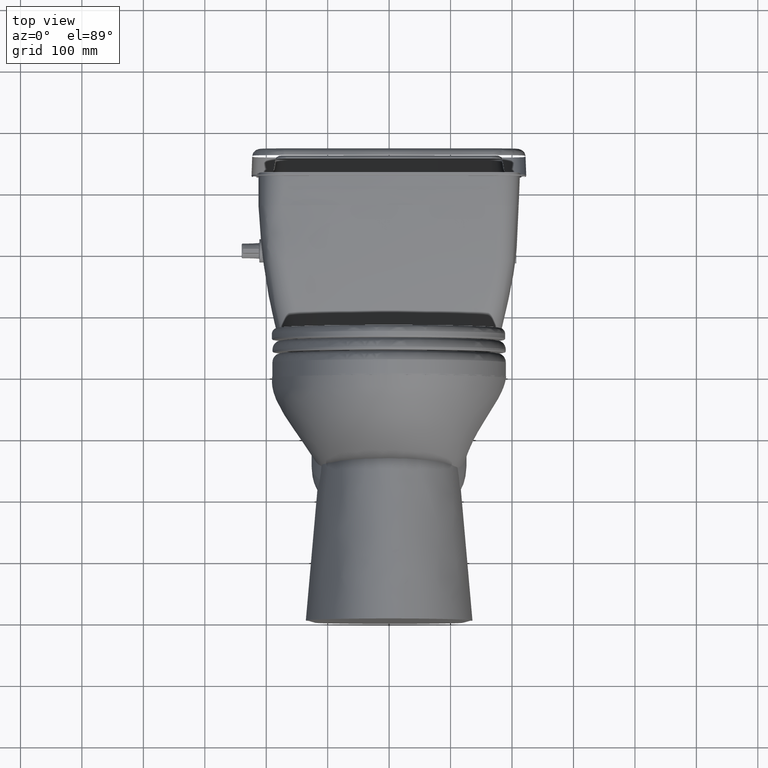
[diagram: clean part render]
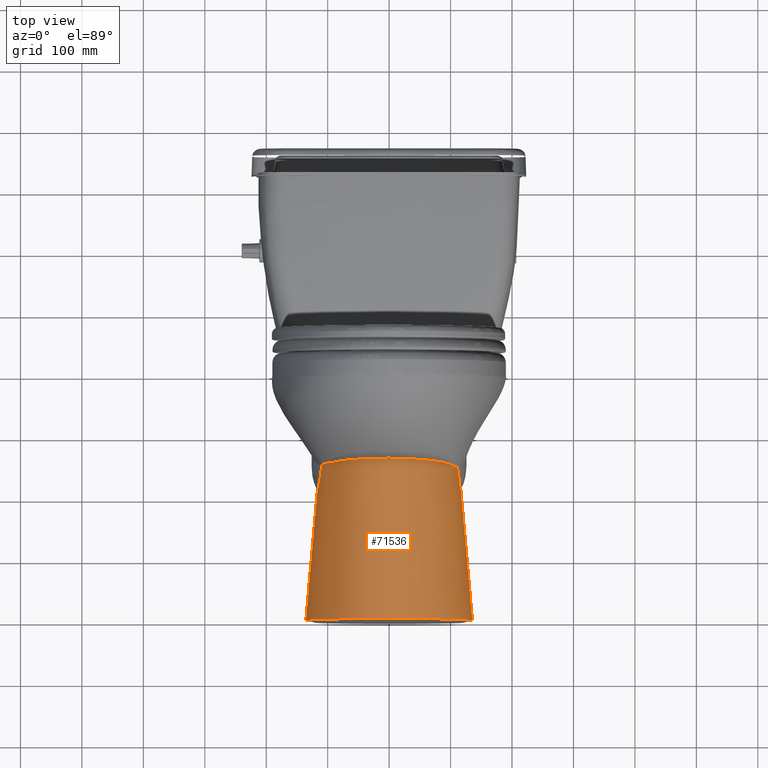
[diagram: same view with one face highlighted and labeled with its STEP entity id]
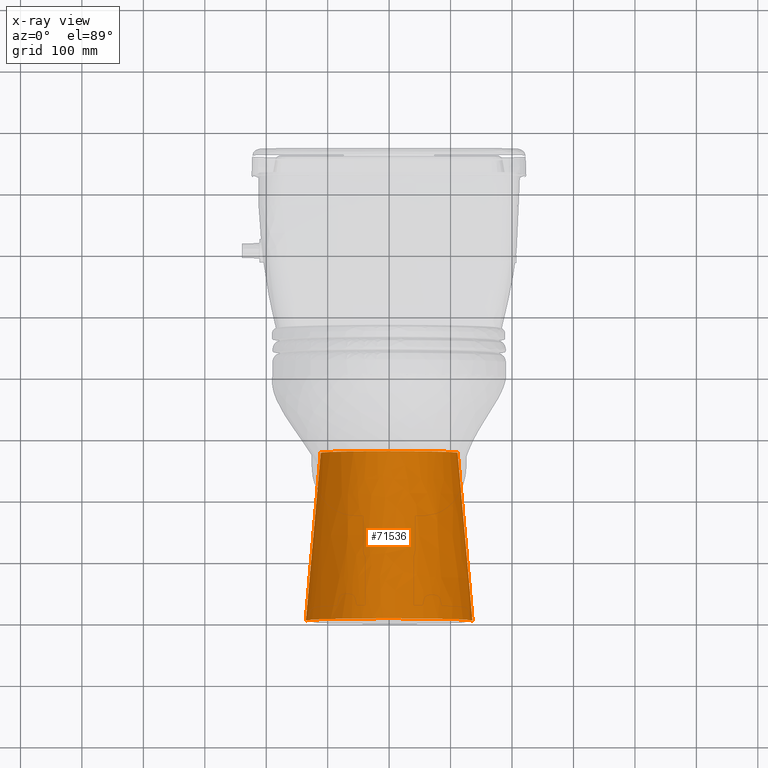
[diagram: x-ray of the same camera — body ghosted, the highlighted face saturated]
A machine part, top view. The second image highlights one B-rep face of the part: STEP entity #71536.
The next image is the same camera in x-ray: the body ghosted, the highlighted face saturated — about 0% of this face is hidden behind the body in this view.
In plain terms, the highlighted face is a freeform B-spline surface patch.
Its self-contained STEP definition (entity closure, byte-faithful):
#3551 = CARTESIAN_POINT ( 'NONE',  ( 5.339194488185818000, -3.168207399435823300, -0.03937007874005237600 ) ) ;
#6254 = CARTESIAN_POINT ( 'NONE',  ( -4.862505812883858500, -1.095489723747637800, 5.334645669291338900 ) ) ;
#10876 = CARTESIAN_POINT ( 'NONE',  ( -3.463895836830676200E-013, -8.144026380842085200, 10.70866141732470400 ) ) ;
#11030 = CARTESIAN_POINT ( 'NONE',  ( -1.745585303599606300E-013, -10.20963318340551300, -0.03937007874007874400 ) ) ;
#11683 = CARTESIAN_POINT ( 'NONE',  ( 2.454219911234094600, -7.103923603740158300, 10.70866141731692900 ) ) ;
#13248 = EDGE_LOOP ( 'NONE', ( #172875, #29583, #194501, #161890 ) ) ;
#14062 = LINE ( 'NONE', #6254, #71350 ) ;
#14891 = CARTESIAN_POINT ( 'NONE',  ( 5.339194488185827800, -1.020987031340944800, -0.03937007874015748000 ) ) ;
#18276 = CARTESIAN_POINT ( 'NONE',  ( -5.339194488185030200, -3.168207399435429400, -0.03937007874005237600 ) ) ;
#18930 = CARTESIAN_POINT ( 'NONE',  ( 4.939984348022038700, -5.315427768472432900, -0.03937007874005237600 ) ) ;
#19591 = CARTESIAN_POINT ( 'NONE',  ( -4.141564152196843400, -7.269991621716522800, -0.03937007874009174800 ) ) ;
#26382 = CARTESIAN_POINT ( 'NONE',  ( -2.454219911234252200, -7.103923603748032000, 10.70866141732874200 ) ) ;
#27673 = CARTESIAN_POINT ( 'NONE',  ( 1.286359738092125900, -7.876339723704724300, 10.70866141732716600 ) ) ;
#29583 = ORIENTED_EDGE ( 'NONE', *, *, #96096, .F. ) ;
#32753 = EDGE_CURVE ( 'NONE', #91366, #84252, #38774, .T. ) ;
#38774 = B_SPLINE_CURVE_WITH_KNOTS ( 'NONE', 12,
 ( #175748, #127690, #143024, #190443, #143693, #85028, #10876, #100343, #55594, #100991, #118273, #163004, #102289 ),
 .UNSPECIFIED., .F., .F.,
 ( 13, 13 ),
 ( 0.0000000000000000000, 0.4221477315721536800 ),
 .UNSPECIFIED. ) ;
#41511 = EDGE_CURVE ( 'NONE', #141685, #102341, #103355, .T. ) ;
#42372 = CARTESIAN_POINT ( 'NONE',  ( -5.339194488185039900, -3.168207399435433400, -0.03937007874015748000 ) ) ;
#43030 = CARTESIAN_POINT ( 'NONE',  ( -5.339194488185039900, -1.020987031340944800, -0.03937007874015748000 ) ) ;
#55594 = CARTESIAN_POINT ( 'NONE',  ( 2.454219911233982200, -7.103923603739792400, 10.70866141731919000 ) ) ;
#57715 = CARTESIAN_POINT ( 'NONE',  ( -3.402038093070472300, -5.912889406011811600, 10.70866141731811000 ) ) ;
#62309 = CARTESIAN_POINT ( 'NONE',  ( 2.987711756281097300, -8.839242523759827100, -0.03937007874001300500 ) ) ;
#69797 = FACE_OUTER_BOUND ( 'NONE', #13248, .T. ) ;
#71126 = CARTESIAN_POINT ( 'NONE',  ( 1.565985221908622100, -9.856932608133858400, -0.03937007874023622200 ) ) ;
#71350 = VECTOR ( 'NONE', #113044, 39.37007874015748100 ) ;
#71536 = ADVANCED_FACE ( 'NONE', ( #69797 ), #113275, .F. ) ;
#73087 = CARTESIAN_POINT ( 'NONE',  ( -4.385817137582677100, -1.169992416154330700, 10.70866141732283500 ) ) ;
#77413 = EDGE_CURVE ( 'NONE', #84252, #141685, #117278, .T. ) ;
#77714 = CARTESIAN_POINT ( 'NONE',  ( -5.339194488185039900, -1.020987031340944800, -0.03937007874015750100 ) ) ;
#84252 = VERTEX_POINT ( 'NONE', #101059 ) ;
#85028 = CARTESIAN_POINT ( 'NONE',  ( -1.286359738092461000, -7.876339723700370500, 10.70866141732076600 ) ) ;
#86506 = CARTESIAN_POINT ( 'NONE',  ( 4.385817137584646200, -1.169992416153937000, 10.70866141732283500 ) ) ;
#87166 = CARTESIAN_POINT ( 'NONE',  ( 5.339194488185827800, -3.168207399435827300, -0.03937007874015748000 ) ) ;
#87791 = CARTESIAN_POINT ( 'NONE',  ( 2.987711756281102200, -8.839242523759843100, -0.03937007874011810800 ) ) ;
#91366 = VERTEX_POINT ( 'NONE', #197323 ) ;
#96096 = EDGE_CURVE ( 'NONE', #102341, #91366, #14062, .T. ) ;
#100343 = CARTESIAN_POINT ( 'NONE',  ( 1.286359738092067100, -7.876339723704306900, 10.70866141732942700 ) ) ;
#100991 = CARTESIAN_POINT ( 'NONE',  ( 3.402038093069804400, -5.912889406019400200, 10.70866141732903300 ) ) ;
#101059 = CARTESIAN_POINT ( 'NONE',  ( 4.385817137584646200, -1.169992416152756000, 10.70866141732283500 ) ) ;
#101160 = CARTESIAN_POINT ( 'NONE',  ( -4.057890766271653700, -4.429405357814960800, 10.70866141732480500 ) ) ;
#102289 = CARTESIAN_POINT ( 'NONE',  ( 4.385817137584646200, -1.169992416152756000, 10.70866141732283500 ) ) ;
#102341 = VERTEX_POINT ( 'NONE', #184614 ) ;
#102455 = CARTESIAN_POINT ( 'NONE',  ( -3.463895836830314700E-013, -8.144026380842520400, 10.70866141732244300 ) ) ;
#103103 = CARTESIAN_POINT ( 'NONE',  ( 4.057890766274015300, -4.429405357811023500, 10.70866141732086700 ) ) ;
#103355 = B_SPLINE_CURVE_WITH_KNOTS ( 'NONE', 12,
 ( #149027, #3551, #18930, #109676, #62309, #125656, #170379, #124983, #138998, #19591, #126303, #18276, #77714 ),
 .UNSPECIFIED., .F., .F.,
 ( 13, 13 ),
 ( 0.0000000000000000000, 0.5409017084930978200 ),
 .UNSPECIFIED. ) ;
#105376 = VECTOR ( 'NONE', #115529, 39.37007874015748100 ) ;
#109676 = CARTESIAN_POINT ( 'NONE',  ( 4.141564152199992900, -7.269991621716522800, -0.03937007874009174800 ) ) ;
#113044 = DIRECTION ( 'NONE',  ( 0.08834716893553855300, -0.01380796795318845300, 0.9959940350032620000 ) ) ;
#113275 = B_SPLINE_SURFACE_WITH_KNOTS ( 'NONE', 12, 1, ( 
 ( #178533, #86506 ),
 ( #87166, #193893 ),
 ( #177225, #103103 ),
 ( #119095, #179848 ),
 ( #87791, #11683 ),
 ( #71126, #27673 ),
 ( #11030, #102455 ),
 ( #117796, #149745 ),
 ( #118432, #26382 ),
 ( #133085, #57715 ),
 ( #133724, #101160 ),
 ( #42372, #148454 ),
 ( #43030, #73087 ) ),
 .UNSPECIFIED., .F., .F., .F.,
 ( 13, 13 ),
 ( 2, 2 ),
 ( 4.712388980384999600, 7.853981633973999600 ),
 ( 0.0000000000000000000, 1.000000000000000000 ),
 .UNSPECIFIED. ) ;
#115529 = DIRECTION ( 'NONE',  ( 0.08834716893543004300, 0.01380796795315211400, -0.9959940350032722200 ) ) ;
#117278 = LINE ( 'NONE', #145518, #105376 ) ;
#117796 = CARTESIAN_POINT ( 'NONE',  ( -1.565985221908267700, -9.856932608133858400, -0.03937007874023622200 ) ) ;
#118273 = CARTESIAN_POINT ( 'NONE',  ( 4.057890766273829700, -4.429405357810837900, 10.70866141732312800 ) ) ;
#118432 = CARTESIAN_POINT ( 'NONE',  ( -2.987711756280708700, -8.839242523763779500, -0.03937007874011810800 ) ) ;
#119095 = CARTESIAN_POINT ( 'NONE',  ( 4.141564152200000000, -7.269991621716536100, -0.03937007874019685800 ) ) ;
#124983 = CARTESIAN_POINT ( 'NONE',  ( -1.565985221908265100, -9.856932608133838900, -0.03937007874013111200 ) ) ;
#125656 = CARTESIAN_POINT ( 'NONE',  ( 1.565985221908619400, -9.856932608133838900, -0.03937007874013111200 ) ) ;
#126303 = CARTESIAN_POINT ( 'NONE',  ( -4.939984348019676100, -5.315427768472432900, -0.03937007874005237600 ) ) ;
#127690 = CARTESIAN_POINT ( 'NONE',  ( -4.385817137582476400, -2.799698944894804400, 10.70866141732431000 ) ) ;
#133085 = CARTESIAN_POINT ( 'NONE',  ( -4.141564152196850500, -7.269991621716536100, -0.03937007874019685800 ) ) ;
#133724 = CARTESIAN_POINT ( 'NONE',  ( -4.939984348019685000, -5.315427768472441800, -0.03937007874015748000 ) ) ;
#138998 = CARTESIAN_POINT ( 'NONE',  ( -2.987711756280703800, -8.839242523763763500, -0.03937007874001300500 ) ) ;
#141685 = VERTEX_POINT ( 'NONE', #14891 ) ;
#143024 = CARTESIAN_POINT ( 'NONE',  ( -4.057890766271468100, -4.429405357814775200, 10.70866141732706600 ) ) ;
#143693 = CARTESIAN_POINT ( 'NONE',  ( -2.454219911234139900, -7.103923603747665200, 10.70866141733100300 ) ) ;
#145518 = CARTESIAN_POINT ( 'NONE',  ( 4.862505812885236100, -1.095489723747441000, 5.334645669291338900 ) ) ;
#148454 = CARTESIAN_POINT ( 'NONE',  ( -4.385817137582677100, -2.799698944894882100, 10.70866141732204600 ) ) ;
#149027 = CARTESIAN_POINT ( 'NONE',  ( 5.339194488185827800, -1.020987031340944800, -0.03937007874015748000 ) ) ;
#149745 = CARTESIAN_POINT ( 'NONE',  ( -1.286359738092520000, -7.876339723700787900, 10.70866141731850400 ) ) ;
#161890 = ORIENTED_EDGE ( 'NONE', *, *, #77413, .F. ) ;
#163004 = CARTESIAN_POINT ( 'NONE',  ( 4.385817137583657700, -2.799698944895197900, 10.70866141732549100 ) ) ;
#170379 = CARTESIAN_POINT ( 'NONE',  ( -1.745585303599623200E-013, -10.20963318340549200, -0.03937007873997364100 ) ) ;
#172875 = ORIENTED_EDGE ( 'NONE', *, *, #32753, .F. ) ;
#175748 = CARTESIAN_POINT ( 'NONE',  ( -4.385817137582677100, -1.169992416153149600, 10.70866141732283500 ) ) ;
#177225 = CARTESIAN_POINT ( 'NONE',  ( 4.939984348022047600, -5.315427768472441800, -0.03937007874015748000 ) ) ;
#178533 = CARTESIAN_POINT ( 'NONE',  ( 5.339194488185827800, -1.020987031340944800, -0.03937007874015748000 ) ) ;
#179848 = CARTESIAN_POINT ( 'NONE',  ( 3.402038093069960300, -5.912889406019685300, 10.70866141732677200 ) ) ;
#184614 = CARTESIAN_POINT ( 'NONE',  ( -5.339194488185039900, -1.020987031340944800, -0.03937007874015750100 ) ) ;
#190443 = CARTESIAN_POINT ( 'NONE',  ( -3.402038093070316500, -5.912889406011526500, 10.70866141732037300 ) ) ;
#193893 = CARTESIAN_POINT ( 'NONE',  ( 4.385817137583858400, -2.799698944895275600, 10.70866141732323000 ) ) ;
#194501 = ORIENTED_EDGE ( 'NONE', *, *, #41511, .F. ) ;
#197323 = CARTESIAN_POINT ( 'NONE',  ( -4.385817137582677100, -1.169992416153149600, 10.70866141732283500 ) ) ;